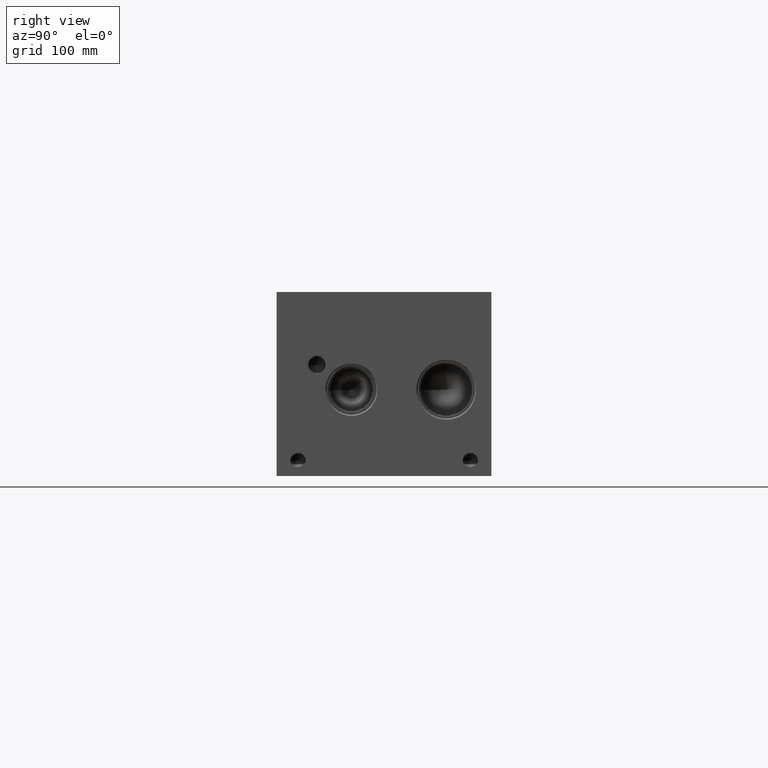
[diagram: clean part render]
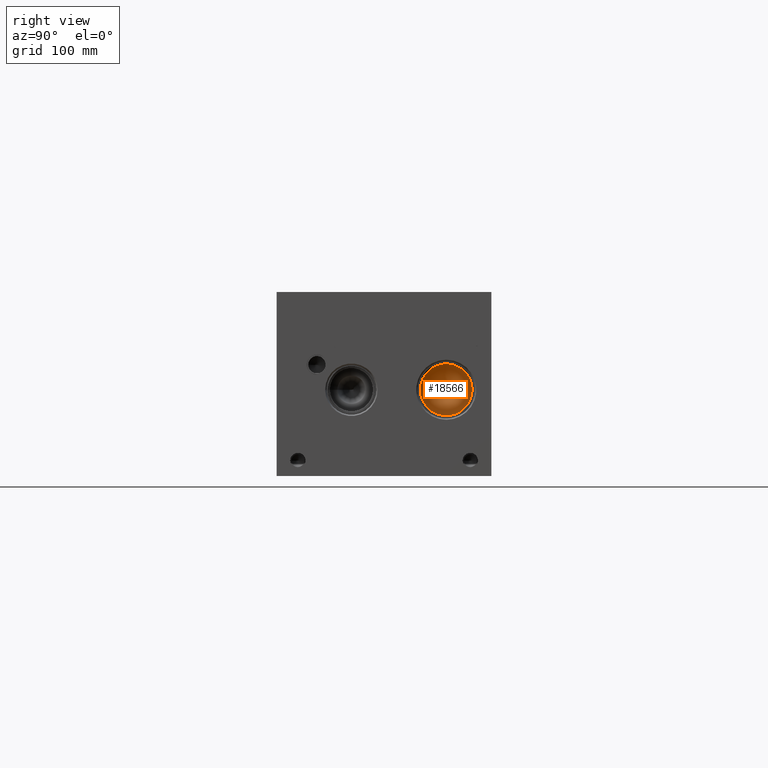
[diagram: same view with one face highlighted and labeled with its STEP entity id]
A machine part, right view. The second image highlights one B-rep face of the part: STEP entity #18566.
In plain terms, the highlighted conical surface has half-angle 60 deg.
Its self-contained STEP definition (entity closure, byte-faithful):
#119=CONICAL_SURFACE('',#19899,10.7188,1.0471975511966);
#1046=CIRCLE('',#19900,21.4376);
#1047=CIRCLE('',#19901,21.4376);
#2638=FACE_OUTER_BOUND('',#3748,.T.);
#3748=EDGE_LOOP('',(#16173,#16174,#16175,#16176));
#5393=LINE('',#32085,#6961);
#6961=VECTOR('',#24086,10.7188);
#8726=VERTEX_POINT('',#32081);
#8727=VERTEX_POINT('',#32082);
#8728=VERTEX_POINT('',#32084);
#11273=EDGE_CURVE('',#8726,#8727,#1046,.T.);
#11274=EDGE_CURVE('',#8727,#8728,#5393,.T.);
#11275=EDGE_CURVE('',#8727,#8726,#1047,.T.);
#16173=ORIENTED_EDGE('',*,*,#11273,.T.);
#16174=ORIENTED_EDGE('',*,*,#11274,.T.);
#16175=ORIENTED_EDGE('',*,*,#11274,.F.);
#16176=ORIENTED_EDGE('',*,*,#11275,.T.);
#18566=ADVANCED_FACE('',(#2638),#119,.F.);
#19899=AXIS2_PLACEMENT_3D('',#32080,#24082,#24083);
#19900=AXIS2_PLACEMENT_3D('',#32083,#24084,#24085);
#19901=AXIS2_PLACEMENT_3D('',#32086,#24087,#24088);
#24082=DIRECTION('center_axis',(1.,0.,0.));
#24083=DIRECTION('ref_axis',(0.,1.,0.));
#24084=DIRECTION('center_axis',(1.,0.,0.));
#24085=DIRECTION('ref_axis',(0.,1.,0.));
#24086=DIRECTION('',(-0.5,0.866025403784439,1.06057523872491E-16));
#24087=DIRECTION('center_axis',(1.,0.,0.));
#24088=DIRECTION('ref_axis',(0.,1.,0.));
#32080=CARTESIAN_POINT('Origin',(515.84472793461,140.4874,71.4248));
#32081=CARTESIAN_POINT('',(522.03323,161.925,71.4248));
#32082=CARTESIAN_POINT('',(522.03323,119.0498,71.4248));
#32083=CARTESIAN_POINT('Origin',(522.03323,140.4874,71.4248));
#32084=CARTESIAN_POINT('',(509.65622586922,140.4874,71.4248));
#32085=CARTESIAN_POINT('',(515.84472793461,129.7686,71.4248));
#32086=CARTESIAN_POINT('Origin',(522.03323,140.4874,71.4248));